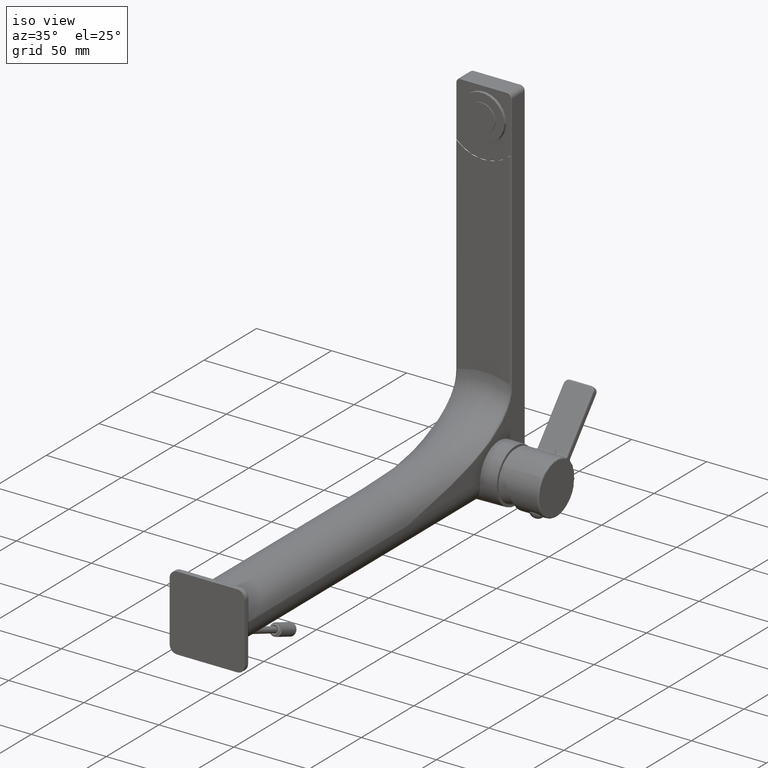
[diagram: clean part render]
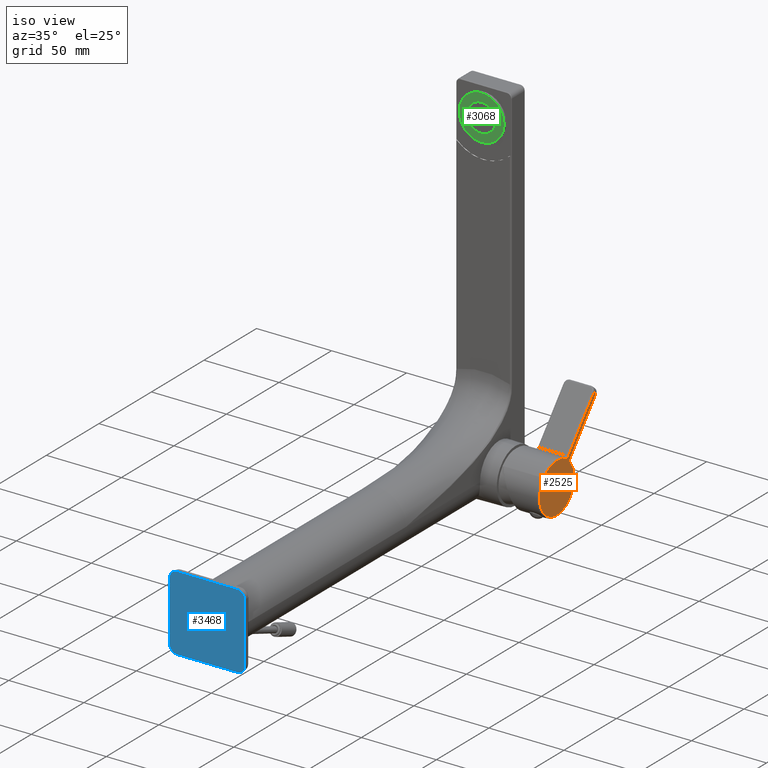
[diagram: same view with three faces highlighted in distinct colors, each labeled with its STEP entity id]
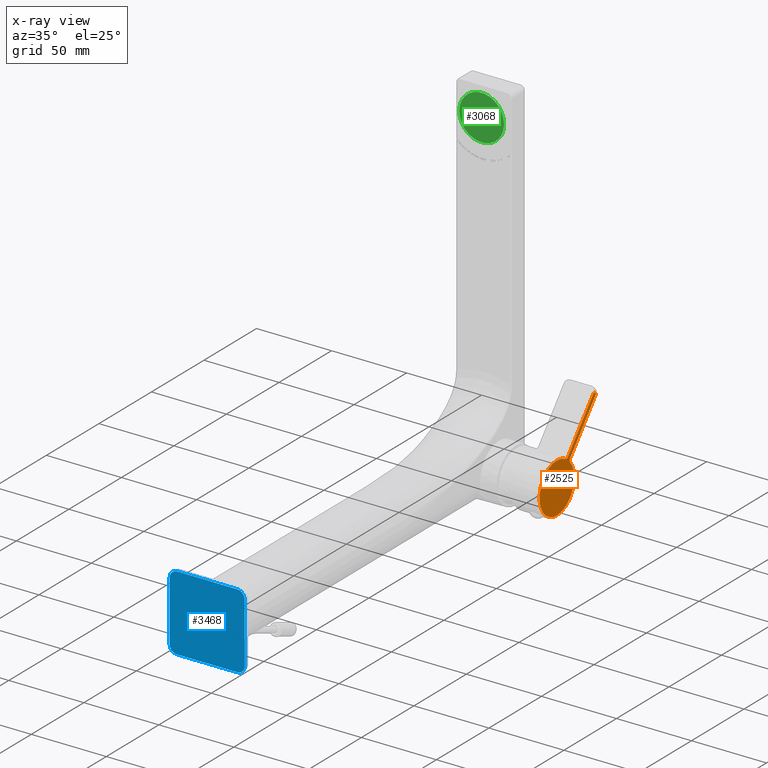
[diagram: x-ray of the same camera — body ghosted, the three highlighted faces saturated]
A machine part, iso view with three faces highlighted in distinct colors.
The next image is the same camera in x-ray (body ghosted, the three faces saturated) — at least one of them is partly hidden behind the body in this view.
Their STEP definitions:

[orange] entity #2525 — the highlighted planar face has unit normal (1, 0, 0).
#1739=CARTESIAN_POINT('',(5.701555214652E1,2.474339800778E2,
-7.867945331230E-2));
#1740=DIRECTION('',(9.999999999998E-1,3.822420727162E-7,4.555382117910E-7));
#1741=DIRECTION('',(-5.854148435508E-7,4.982158064472E-1,8.670530607788E-1));
#1742=AXIS2_PLACEMENT_3D('',#1739,#1740,#1741);
#1843=DIRECTION('',(-5.946629852300E-7,6.427877351859E-1,7.660443378122E-1));
#1844=VECTOR('',#1843,3.828771019193E1);
#1845=CARTESIAN_POINT('',(5.701554131635E1,2.581830611721E2,1.467622670075E1));
#1846=LINE('',#1845,#1844);
#1847=DIRECTION('',(0.E0,7.660443378195E-1,-6.427877351775E-1));
#1848=VECTOR('',#1847,2.5E0);
#1849=CARTESIAN_POINT('',(5.701551854806E1,2.827939316919E2,4.400631030107E1));
#1850=LINE('',#1849,#1848);
#1851=DIRECTION('',(5.946629852297E-7,-6.427877351692E-1,-7.660443378263E-1));
#1852=VECTOR('',#1851,3.828771019195E1);
#1853=CARTESIAN_POINT('',(5.701551854806E1,2.847090425364E2,4.239934096313E1));
#1854=LINE('',#1853,#1852);
#1855=CARTESIAN_POINT('',(5.701554131635E1,2.616302606929E2,1.178368189244E1));
#1856=DIRECTION('',(9.999999999998E-1,3.822420727162E-7,4.555382117910E-7));
#1857=DIRECTION('',(0.E0,-7.660443378195E-1,6.427877351775E-1));
#1858=AXIS2_PLACEMENT_3D('',#1855,#1856,#1857);
#1860=CARTESIAN_POINT('',(5.701554131635E1,2.566509724971E2,1.596180217110E1));
#1861=DIRECTION('',(9.999999999998E-1,3.822420727162E-7,4.555382117910E-7));
#1862=DIRECTION('',(5.854148419360E-7,-4.982158064472E-1,-8.670530607788E-1));
#1863=AXIS2_PLACEMENT_3D('',#1860,#1861,#1862);
#2049=CARTESIAN_POINT('',(5.701551854806E1,2.827939316930E2,4.400631030246E1));
#2050=VERTEX_POINT('',#2049);
#2053=CARTESIAN_POINT('',(5.701554131635E1,2.581830611721E2,1.467622670075E1));
#2054=VERTEX_POINT('',#2053);
#2057=CARTESIAN_POINT('',(5.701554248718E1,2.556545408842E2,1.422769604954E1));
#2058=VERTEX_POINT('',#2057);
#2067=CARTESIAN_POINT('',(5.701554131635E1,2.600981720172E2,1.306925736280E1));
#2068=CARTESIAN_POINT('',(5.701554248718E1,2.600955276534E2,1.050126444966E1));
#2069=VERTEX_POINT('',#2067);
#2070=VERTEX_POINT('',#2068);
#2073=CARTESIAN_POINT('',(5.701551854806E1,2.847090425364E2,4.239934096313E1));
#2074=VERTEX_POINT('',#2073);
#2509=CARTESIAN_POINT('',(5.701555214652E1,2.474339800778E2,
-7.867945331230E-2));
#2510=DIRECTION('',(9.999999999998E-1,3.822420727162E-7,4.555382117910E-7));
#2511=DIRECTION('',(0.E0,-7.660443378195E-1,6.427877351775E-1));
#2512=AXIS2_PLACEMENT_3D('',#2509,#2510,#2511);
#2513=PLANE('',#2512);
#2515=ORIENTED_EDGE('',*,*,#2514,.T.);
#2517=ORIENTED_EDGE('',*,*,#2516,.T.);
#2519=ORIENTED_EDGE('',*,*,#2518,.T.);
#2520=ORIENTED_EDGE('',*,*,#2495,.T.);
#2521=ORIENTED_EDGE('',*,*,#2262,.F.);
#2522=ORIENTED_EDGE('',*,*,#2286,.T.);
#2523=EDGE_LOOP('',(#2515,#2517,#2519,#2520,#2521,#2522));
#2524=FACE_OUTER_BOUND('',#2523,.F.);
#2525=ADVANCED_FACE('',(#2524),#2513,.T.);
#1743=CIRCLE('',#1742,1.65E1);
#1859=CIRCLE('',#1858,2.E0);
#1864=CIRCLE('',#1863,2.E0);
#2262=EDGE_CURVE('',#2058,#2070,#1743,.T.);
#2286=EDGE_CURVE('',#2058,#2054,#1864,.T.);
#2495=EDGE_CURVE('',#2069,#2070,#1859,.T.);
#2514=EDGE_CURVE('',#2054,#2050,#1846,.T.);
#2516=EDGE_CURVE('',#2050,#2074,#1850,.T.);
#2518=EDGE_CURVE('',#2074,#2069,#1854,.T.);

[blue] entity #3468 — the highlighted planar face has unit normal (0, 1, 0).
#3217=CARTESIAN_POINT('',(2.E1,-4.E0,2.E1));
#3218=DIRECTION('',(0.E0,-1.E0,0.E0));
#3219=DIRECTION('',(1.E0,0.E0,0.E0));
#3220=AXIS2_PLACEMENT_3D('',#3217,#3218,#3219);
#3222=DIRECTION('',(0.E0,0.E0,-1.E0));
#3223=VECTOR('',#3222,4.E1);
#3224=CARTESIAN_POINT('',(2.5E1,-4.E0,2.E1));
#3225=LINE('',#3224,#3223);
#3226=CARTESIAN_POINT('',(2.E1,-4.E0,-2.E1));
#3227=DIRECTION('',(0.E0,-1.E0,0.E0));
#3228=DIRECTION('',(0.E0,0.E0,-1.E0));
#3229=AXIS2_PLACEMENT_3D('',#3226,#3227,#3228);
#3231=DIRECTION('',(-1.E0,0.E0,0.E0));
#3232=VECTOR('',#3231,4.E1);
#3233=CARTESIAN_POINT('',(2.E1,-4.E0,-2.5E1));
#3234=LINE('',#3233,#3232);
#3235=CARTESIAN_POINT('',(-2.E1,-4.E0,-2.E1));
#3236=DIRECTION('',(0.E0,-1.E0,0.E0));
#3237=DIRECTION('',(-1.E0,0.E0,0.E0));
#3238=AXIS2_PLACEMENT_3D('',#3235,#3236,#3237);
#3240=DIRECTION('',(0.E0,0.E0,1.E0));
#3241=VECTOR('',#3240,4.E1);
#3242=CARTESIAN_POINT('',(-2.5E1,-4.E0,-2.E1));
#3243=LINE('',#3242,#3241);
#3244=CARTESIAN_POINT('',(-2.E1,-4.E0,2.E1));
#3245=DIRECTION('',(0.E0,-1.E0,0.E0));
#3246=DIRECTION('',(0.E0,0.E0,1.E0));
#3247=AXIS2_PLACEMENT_3D('',#3244,#3245,#3246);
#3249=DIRECTION('',(1.E0,0.E0,0.E0));
#3250=VECTOR('',#3249,4.E1);
#3251=CARTESIAN_POINT('',(-2.E1,-4.E0,2.5E1));
#3252=LINE('',#3251,#3250);
#3397=CARTESIAN_POINT('',(2.5E1,-4.E0,2.E1));
#3398=CARTESIAN_POINT('',(2.E1,-4.E0,2.5E1));
#3399=VERTEX_POINT('',#3397);
#3400=VERTEX_POINT('',#3398);
#3401=CARTESIAN_POINT('',(2.E1,-4.E0,-2.5E1));
#3402=CARTESIAN_POINT('',(2.5E1,-4.E0,-2.E1));
#3403=VERTEX_POINT('',#3401);
#3404=VERTEX_POINT('',#3402);
#3405=CARTESIAN_POINT('',(-2.E1,-4.E0,2.5E1));
#3406=CARTESIAN_POINT('',(-2.5E1,-4.E0,2.E1));
#3407=VERTEX_POINT('',#3405);
#3408=VERTEX_POINT('',#3406);
#3409=CARTESIAN_POINT('',(-2.5E1,-4.E0,-2.E1));
#3410=CARTESIAN_POINT('',(-2.E1,-4.E0,-2.5E1));
#3411=VERTEX_POINT('',#3409);
#3412=VERTEX_POINT('',#3410);
#3445=CARTESIAN_POINT('',(0.E0,-4.E0,4.932264983566E-14));
#3446=DIRECTION('',(0.E0,1.E0,0.E0));
#3447=DIRECTION('',(1.E0,0.E0,0.E0));
#3448=AXIS2_PLACEMENT_3D('',#3445,#3446,#3447);
#3449=PLANE('',#3448);
#3451=ORIENTED_EDGE('',*,*,#3450,.F.);
#3453=ORIENTED_EDGE('',*,*,#3452,.T.);
#3455=ORIENTED_EDGE('',*,*,#3454,.F.);
#3457=ORIENTED_EDGE('',*,*,#3456,.T.);
#3459=ORIENTED_EDGE('',*,*,#3458,.F.);
#3461=ORIENTED_EDGE('',*,*,#3460,.T.);
#3463=ORIENTED_EDGE('',*,*,#3462,.F.);
#3465=ORIENTED_EDGE('',*,*,#3464,.T.);
#3466=EDGE_LOOP('',(#3451,#3453,#3455,#3457,#3459,#3461,#3463,#3465));
#3467=FACE_OUTER_BOUND('',#3466,.F.);
#3468=ADVANCED_FACE('',(#3467),#3449,.F.);
#3221=CIRCLE('',#3220,5.E0);
#3230=CIRCLE('',#3229,5.E0);
#3239=CIRCLE('',#3238,5.E0);
#3248=CIRCLE('',#3247,5.E0);
#3450=EDGE_CURVE('',#3399,#3400,#3221,.T.);
#3452=EDGE_CURVE('',#3399,#3404,#3225,.T.);
#3454=EDGE_CURVE('',#3403,#3404,#3230,.T.);
#3456=EDGE_CURVE('',#3403,#3412,#3234,.T.);
#3458=EDGE_CURVE('',#3411,#3412,#3239,.T.);
#3460=EDGE_CURVE('',#3411,#3408,#3243,.T.);
#3462=EDGE_CURVE('',#3407,#3408,#3248,.T.);
#3464=EDGE_CURVE('',#3407,#3400,#3252,.T.);

[green] entity #3068 — the highlighted planar face has unit normal (0, -1, 0).
#3021=CARTESIAN_POINT('',(0.E0,2.573E2,2.04E2));
#3022=DIRECTION('',(0.E0,-1.E0,0.E0));
#3023=DIRECTION('',(1.E0,0.E0,0.E0));
#3024=AXIS2_PLACEMENT_3D('',#3021,#3022,#3023);
#3044=CARTESIAN_POINT('',(0.E0,2.573E2,2.04E2));
#3045=DIRECTION('',(0.E0,1.E0,0.E0));
#3046=DIRECTION('',(1.E0,0.E0,0.E0));
#3047=AXIS2_PLACEMENT_3D('',#3044,#3045,#3046);
#3049=CARTESIAN_POINT('',(1.5E1,2.573E2,2.04E2));
#3051=VERTEX_POINT('',#3049);
#3053=CARTESIAN_POINT('',(-1.5E1,2.573E2,2.04E2));
#3055=VERTEX_POINT('',#3053);
#3057=CARTESIAN_POINT('',(0.E0,2.573E2,2.04E2));
#3058=DIRECTION('',(0.E0,-1.E0,0.E0));
#3059=DIRECTION('',(-1.E0,0.E0,0.E0));
#3060=AXIS2_PLACEMENT_3D('',#3057,#3058,#3059);
#3061=PLANE('',#3060);
#3063=ORIENTED_EDGE('',*,*,#3062,.F.);
#3065=ORIENTED_EDGE('',*,*,#3064,.T.);
#3066=EDGE_LOOP('',(#3063,#3065));
#3067=FACE_OUTER_BOUND('',#3066,.F.);
#3068=ADVANCED_FACE('',(#3067),#3061,.T.);
#3025=CIRCLE('',#3024,1.5E1);
#3048=CIRCLE('',#3047,1.5E1);
#3062=EDGE_CURVE('',#3051,#3055,#3025,.T.);
#3064=EDGE_CURVE('',#3051,#3055,#3048,.T.);